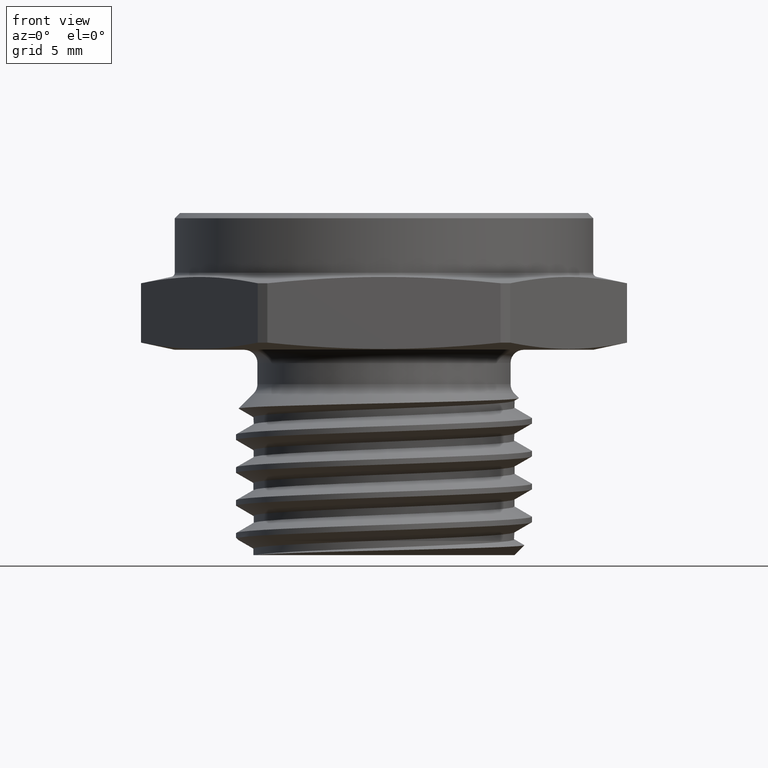
[diagram: clean part render]
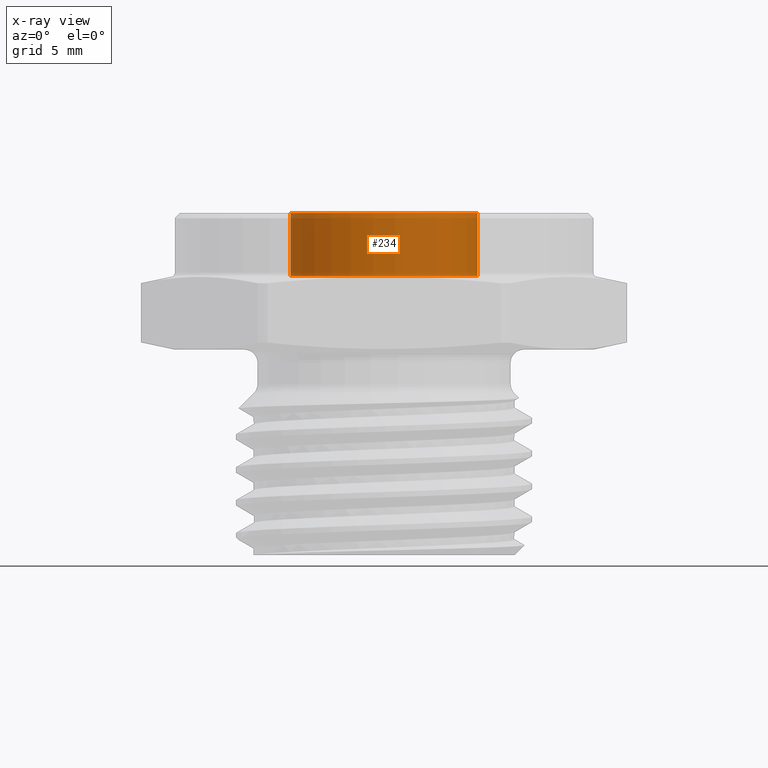
[diagram: x-ray — body ghosted, one internal face saturated and labeled with its STEP entity id]
A machine part, front view, then the same camera in x-ray: the body is ghosted and one INTERNAL B-rep face — a face not visible from any outside direction — is saturated and labeled: STEP entity #234.
In plain terms, the highlighted cylindrical surface (partial cylindrical patch) has radius 4.5085 mm, axis along (0, 0, 1).
Its self-contained STEP definition (entity closure, byte-faithful):
#19 = FACE_OUTER_BOUND ( 'NONE', #1979, .T. ) ;
#24 = CYLINDRICAL_SURFACE ( 'NONE', #2265, 0.1774999999999999900 ) ;
#197 = AXIS2_PLACEMENT_3D ( 'NONE', #1086, #1087, #1088 ) ;
#198 = AXIS2_PLACEMENT_3D ( 'NONE', #1089, #1090, #1091 ) ;
#234 = ADVANCED_FACE ( 'NONE', ( #19 ), #24, .T. ) ;
#261 = VERTEX_POINT ( 'NONE', #2708 ) ;
#262 = VERTEX_POINT ( 'NONE', #2707 ) ;
#361 = VERTEX_POINT ( 'NONE', #722 ) ;
#370 = VERTEX_POINT ( 'NONE', #733 ) ;
#722 = CARTESIAN_POINT ( 'NONE',  ( 0.1774999999999999900, 0.0000000000000000000, 0.2600000000000000100 ) ) ;
#733 = CARTESIAN_POINT ( 'NONE',  ( 0.1774999999999999900, 0.0000000000000000000, 0.1400000000000000100 ) ) ;
#1076 = CARTESIAN_POINT ( 'NONE',  ( -0.1774999999999999900, 2.173748068486551400E-017, 0.1400000000000000100 ) ) ;
#1077 = DIRECTION ( 'NONE',  ( 0.0000000000000000000, 0.0000000000000000000, 1.000000000000000000 ) ) ;
#1078 = DIRECTION ( 'NONE',  ( 0.0000000000000000000, 0.0000000000000000000, 1.000000000000000000 ) ) ;
#1082 = CARTESIAN_POINT ( 'NONE',  ( 0.1774999999999999900, 0.0000000000000000000, 0.1400000000000000100 ) ) ;
#1086 = CARTESIAN_POINT ( 'NONE',  ( 0.0000000000000000000, 0.0000000000000000000, 0.1400000000000000100 ) ) ;
#1087 = DIRECTION ( 'NONE',  ( 0.0000000000000000000, 0.0000000000000000000, 1.000000000000000000 ) ) ;
#1088 = DIRECTION ( 'NONE',  ( 1.000000000000000000, 0.0000000000000000000, 0.0000000000000000000 ) ) ;
#1089 = CARTESIAN_POINT ( 'NONE',  ( 0.0000000000000000000, 0.0000000000000000000, 0.2600000000000000100 ) ) ;
#1090 = DIRECTION ( 'NONE',  ( 0.0000000000000000000, 0.0000000000000000000, 1.000000000000000000 ) ) ;
#1091 = DIRECTION ( 'NONE',  ( 1.000000000000000000, 0.0000000000000000000, 0.0000000000000000000 ) ) ;
#1961 = ORIENTED_EDGE ( 'NONE', *, *, #2245, .F. ) ;
#1962 = ORIENTED_EDGE ( 'NONE', *, *, #2249, .T. ) ;
#1963 = ORIENTED_EDGE ( 'NONE', *, *, #2248, .T. ) ;
#1964 = ORIENTED_EDGE ( 'NONE', *, *, #2250, .F. ) ;
#1979 = EDGE_LOOP ( 'NONE', ( #1961, #1962, #1963, #1964 ) ) ;
#2245 = EDGE_CURVE ( 'NONE', #262, #261, #2421, .T. ) ;
#2248 = EDGE_CURVE ( 'NONE', #370, #361, #2420, .T. ) ;
#2249 = EDGE_CURVE ( 'NONE', #262, #370, #2424, .T. ) ;
#2250 = EDGE_CURVE ( 'NONE', #261, #361, #2427, .T. ) ;
#2265 = AXIS2_PLACEMENT_3D ( 'NONE', #2740, #2739, #2741 ) ;
#2420 = LINE ( 'NONE', #1082, #2426 ) ;
#2421 = LINE ( 'NONE', #1076, #2422 ) ;
#2422 = VECTOR ( 'NONE', #1077, 39.37007874015748100 ) ;
#2424 = CIRCLE ( 'NONE', #197, 0.1774999999999999900 ) ;
#2426 = VECTOR ( 'NONE', #1078, 39.37007874015748100 ) ;
#2427 = CIRCLE ( 'NONE', #198, 0.1774999999999999900 ) ;
#2707 = CARTESIAN_POINT ( 'NONE',  ( -0.1774999999999999900, 2.173748068486551400E-017, 0.1400000000000000100 ) ) ;
#2708 = CARTESIAN_POINT ( 'NONE',  ( -0.1774999999999999900, 2.173748068486551400E-017, 0.2600000000000000100 ) ) ;
#2739 = DIRECTION ( 'NONE',  ( 0.0000000000000000000, 0.0000000000000000000, 1.000000000000000000 ) ) ;
#2740 = CARTESIAN_POINT ( 'NONE',  ( 0.0000000000000000000, 0.0000000000000000000, 0.1400000000000000100 ) ) ;
#2741 = DIRECTION ( 'NONE',  ( 1.000000000000000000, 0.0000000000000000000, 0.0000000000000000000 ) ) ;